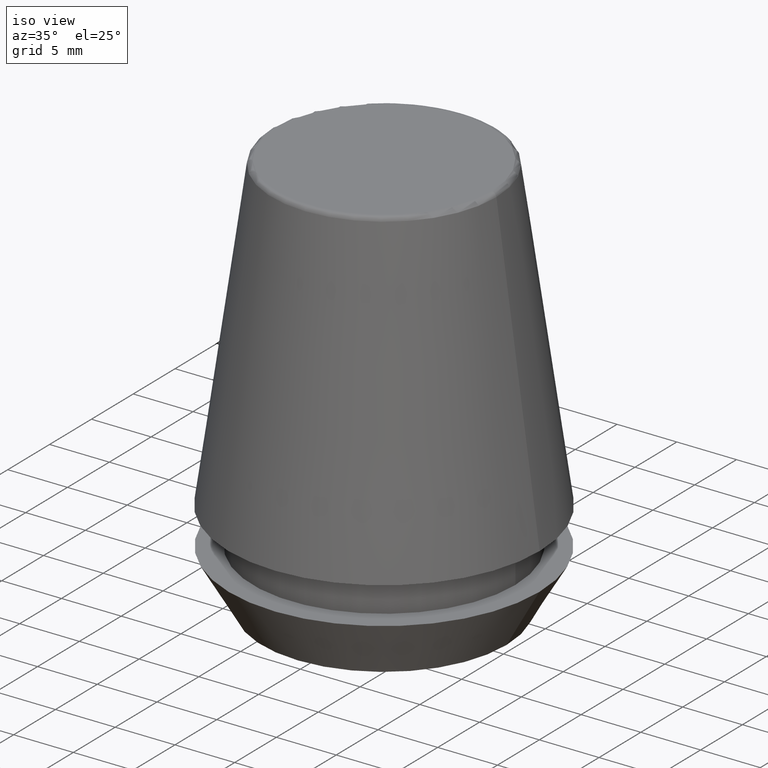
[diagram: clean part render]
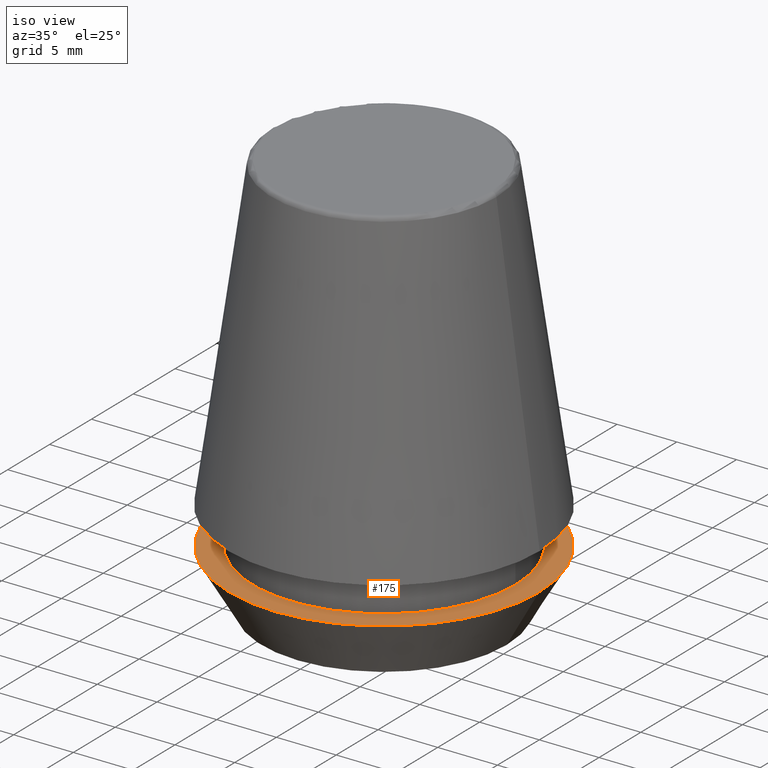
[diagram: same view with one face highlighted and labeled with its STEP entity id]
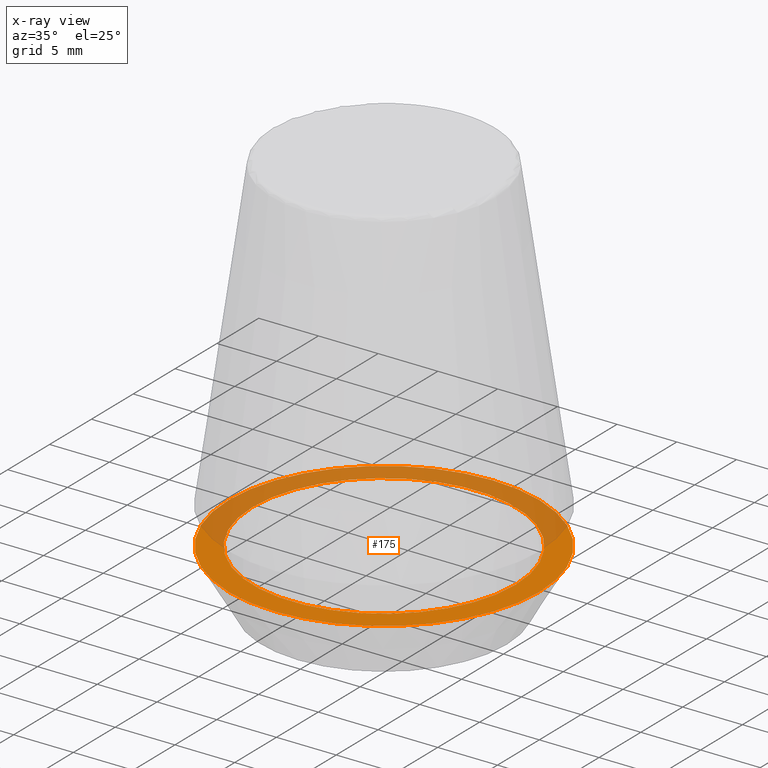
[diagram: x-ray of the same camera — body ghosted, the highlighted face saturated]
A machine part, iso view. The second image highlights one B-rep face of the part: STEP entity #175.
The next image is the same camera in x-ray: the body ghosted, the highlighted face saturated — about 46% of this face is hidden behind the body in this view.
In plain terms, the highlighted planar face has unit normal (0, 0, -1).
Its self-contained STEP definition (entity closure, byte-faithful):
#4 = CARTESIAN_POINT ( 'NONE',  ( 0.0000000000000000000, 0.0000000000000000000, 4.742050807568884500 ) ) ;
#15 = ORIENTED_EDGE ( 'NONE', *, *, #232, .F. ) ;
#33 = CARTESIAN_POINT ( 'NONE',  ( 0.0000000000000000000, 0.0000000000000000000, 4.742050807568884500 ) ) ;
#45 = CARTESIAN_POINT ( 'NONE',  ( 13.00000000000000000, 0.0000000000000000000, 4.742050807568884500 ) ) ;
#56 = FACE_BOUND ( 'NONE', #220, .T. ) ;
#67 = DIRECTION ( 'NONE',  ( 1.000000000000000000, 0.0000000000000000000, 0.0000000000000000000 ) ) ;
#72 = DIRECTION ( 'NONE',  ( 1.000000000000000000, 0.0000000000000000000, 0.0000000000000000000 ) ) ;
#83 = FACE_OUTER_BOUND ( 'NONE', #107, .T. ) ;
#89 = CIRCLE ( 'NONE', #301, 13.00000000000000000 ) ;
#97 = DIRECTION ( 'NONE',  ( -1.000000000000000000, 0.0000000000000000000, -0.0000000000000000000 ) ) ;
#98 = CIRCLE ( 'NONE', #310, 11.00000000000000000 ) ;
#100 = DIRECTION ( 'NONE',  ( -0.0000000000000000000, -0.0000000000000000000, 1.000000000000000000 ) ) ;
#107 = EDGE_LOOP ( 'NONE', ( #270, #291 ) ) ;
#114 = DIRECTION ( 'NONE',  ( -0.0000000000000000000, -0.0000000000000000000, 1.000000000000000000 ) ) ;
#126 = VERTEX_POINT ( 'NONE', #157 ) ;
#127 = CARTESIAN_POINT ( 'NONE',  ( 11.00000000000000000, 0.0000000000000000000, 4.742050807568884500 ) ) ;
#128 = CARTESIAN_POINT ( 'NONE',  ( 0.0000000000000000000, 13.00000000000000000, 4.742050807568884500 ) ) ;
#157 = CARTESIAN_POINT ( 'NONE',  ( -13.00000000000000000, 1.592040838891559100E-015, 4.742050807568884500 ) ) ;
#160 = AXIS2_PLACEMENT_3D ( 'NONE', #128, #244, #97 ) ;
#161 = DIRECTION ( 'NONE',  ( -0.0000000000000000000, -0.0000000000000000000, 1.000000000000000000 ) ) ;
#172 = CARTESIAN_POINT ( 'NONE',  ( -11.00000000000000000, 1.347111479062088400E-015, 4.742050807568884500 ) ) ;
#175 = ADVANCED_FACE ( 'NONE', ( #56, #83 ), #303, .F. ) ;
#177 = CARTESIAN_POINT ( 'NONE',  ( 0.0000000000000000000, 0.0000000000000000000, 4.742050807568884500 ) ) ;
#189 = EDGE_CURVE ( 'NONE', #126, #339, #274, .T. ) ;
#196 = VERTEX_POINT ( 'NONE', #127 ) ;
#220 = EDGE_LOOP ( 'NONE', ( #15, #383 ) ) ;
#232 = EDGE_CURVE ( 'NONE', #196, #371, #238, .T. ) ;
#235 = DIRECTION ( 'NONE',  ( 1.000000000000000000, 0.0000000000000000000, 0.0000000000000000000 ) ) ;
#238 = CIRCLE ( 'NONE', #296, 11.00000000000000000 ) ;
#240 = DIRECTION ( 'NONE',  ( -0.0000000000000000000, -0.0000000000000000000, 1.000000000000000000 ) ) ;
#244 = DIRECTION ( 'NONE',  ( 0.0000000000000000000, 0.0000000000000000000, -1.000000000000000000 ) ) ;
#256 = EDGE_CURVE ( 'NONE', #371, #196, #98, .T. ) ;
#266 = EDGE_CURVE ( 'NONE', #339, #126, #89, .T. ) ;
#270 = ORIENTED_EDGE ( 'NONE', *, *, #266, .T. ) ;
#274 = CIRCLE ( 'NONE', #324, 13.00000000000000000 ) ;
#291 = ORIENTED_EDGE ( 'NONE', *, *, #189, .T. ) ;
#296 = AXIS2_PLACEMENT_3D ( 'NONE', #177, #114, #235 ) ;
#301 = AXIS2_PLACEMENT_3D ( 'NONE', #4, #100, #72 ) ;
#303 = PLANE ( 'NONE',  #160 ) ;
#310 = AXIS2_PLACEMENT_3D ( 'NONE', #345, #161, #384 ) ;
#324 = AXIS2_PLACEMENT_3D ( 'NONE', #33, #240, #67 ) ;
#339 = VERTEX_POINT ( 'NONE', #45 ) ;
#345 = CARTESIAN_POINT ( 'NONE',  ( 0.0000000000000000000, 0.0000000000000000000, 4.742050807568884500 ) ) ;
#371 = VERTEX_POINT ( 'NONE', #172 ) ;
#383 = ORIENTED_EDGE ( 'NONE', *, *, #256, .F. ) ;
#384 = DIRECTION ( 'NONE',  ( 1.000000000000000000, 0.0000000000000000000, 0.0000000000000000000 ) ) ;